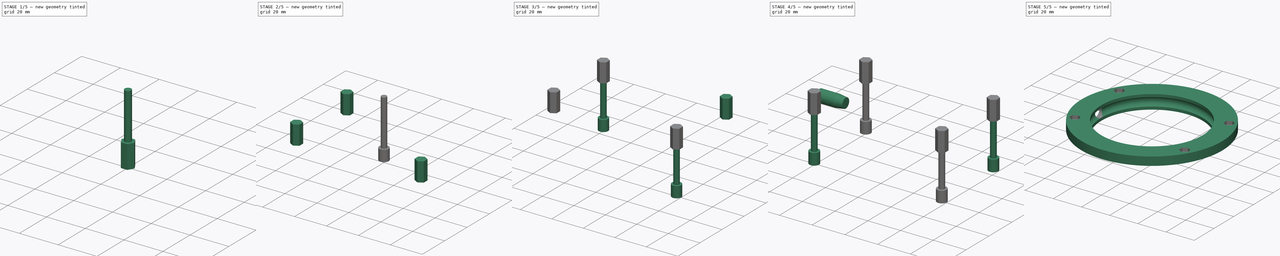
[diagram: build sequence overview — one tinted view per stage of 5, left to right]
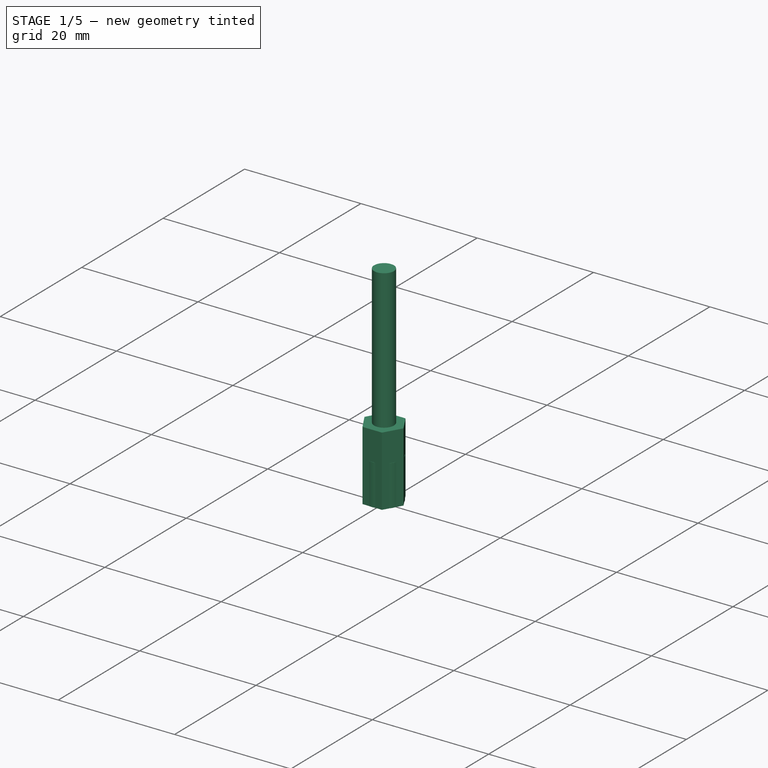
[diagram: stage 1 of 5 — iso view after this stage's code; geometry added in this stage tinted green]
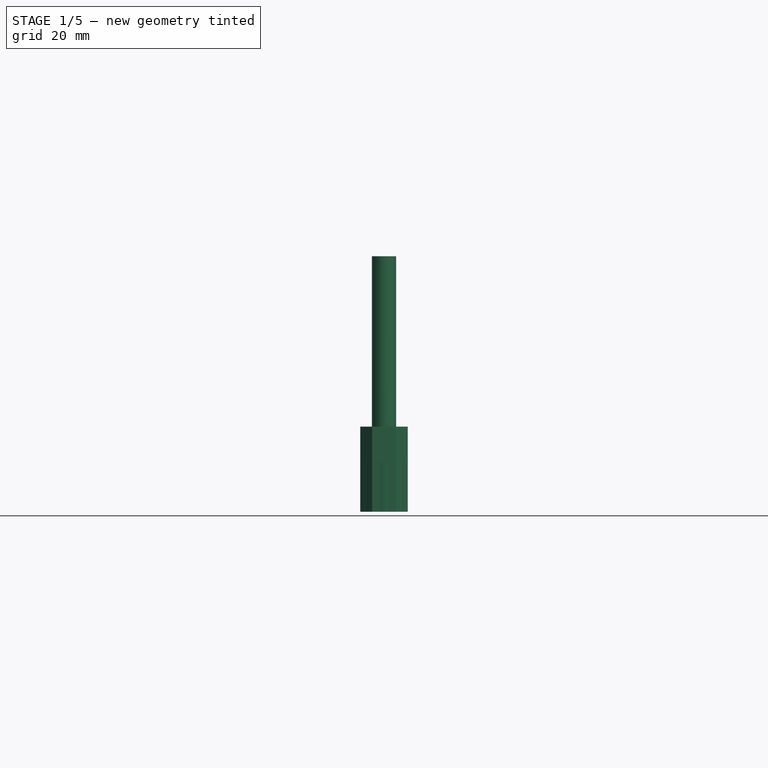
[diagram: stage 1 of 5 — front view after this stage's code; geometry added in this stage tinted green]
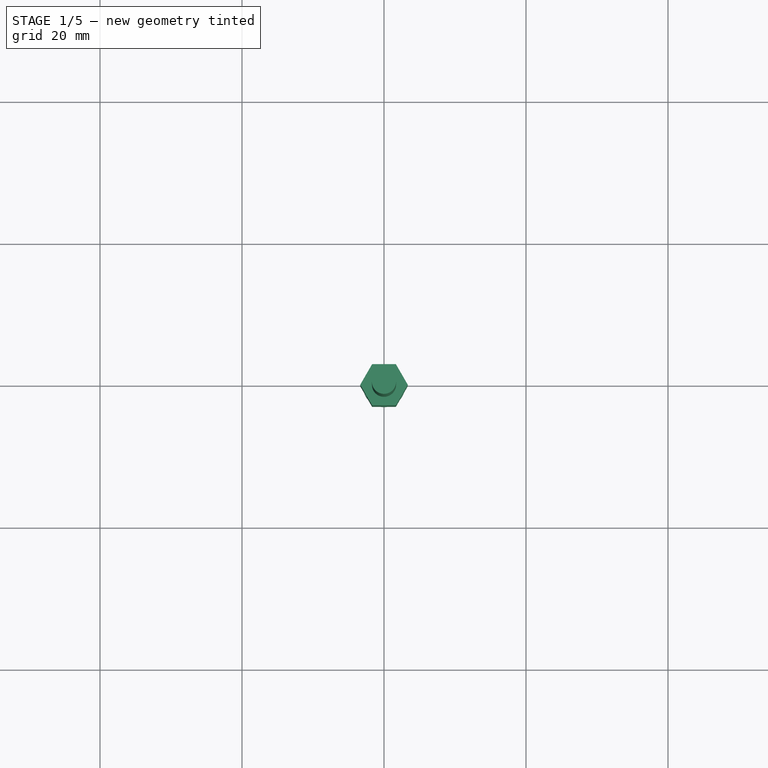
[diagram: stage 1 of 5 — top view after this stage's code; geometry added in this stage tinted green]
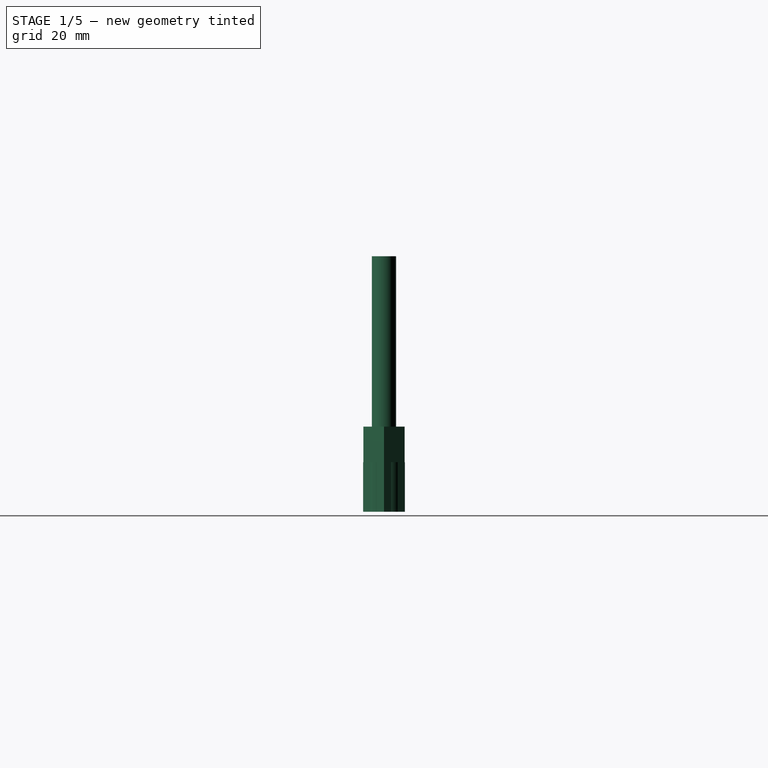
[diagram: stage 1 of 5 — right view after this stage's code; geometry added in this stage tinted green]
FCSTD DOCUMENT  (FreeCAD 0.16R6458 (Git))
Label: Art4BearingRing
License: All rights reserved
LicenseURL: http://en.wikipedia.org/wiki/All_rights_reserved
objects: Part::FeaturePython×8, Part::Cylinder×2, Part::MultiFuse×2, Sketcher::SketchObject×2, PartDesign::Revolution×2, Part::Cut×2, Part::Prism×1, App::DocumentObjectGroup×1
note: 21 computed .brp shape members not serialized (recipe doc carries the construction recipe); baked Part::Feature solids carry a one-line shape summary decoded from their .brp

FEATURE [Part::Cylinder] Cylinder  label="M3BoltHead"
  Angle = 360
  Height = 7
  Radius = 2.95
FEATURE [Part::Cylinder] Cylinder001  label="M3BoltBody"
  Angle = 360
  Height = 30
  Placement = pos=(0,0,6) rot=(0,0,1;0rad)
  Radius = 1.7
FEATURE [Part::Prism] Prism  label="M3Nut"
  Circumradius = 3.35
  Height = 12
  Polygon = 6
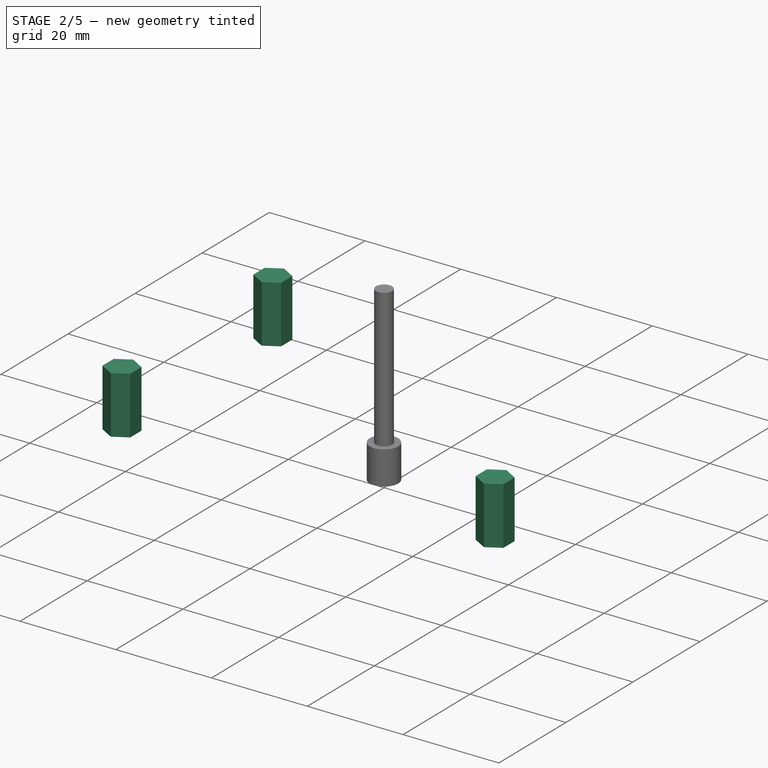
[diagram: stage 2 of 5 — iso view after this stage's code; geometry added in this stage tinted green]
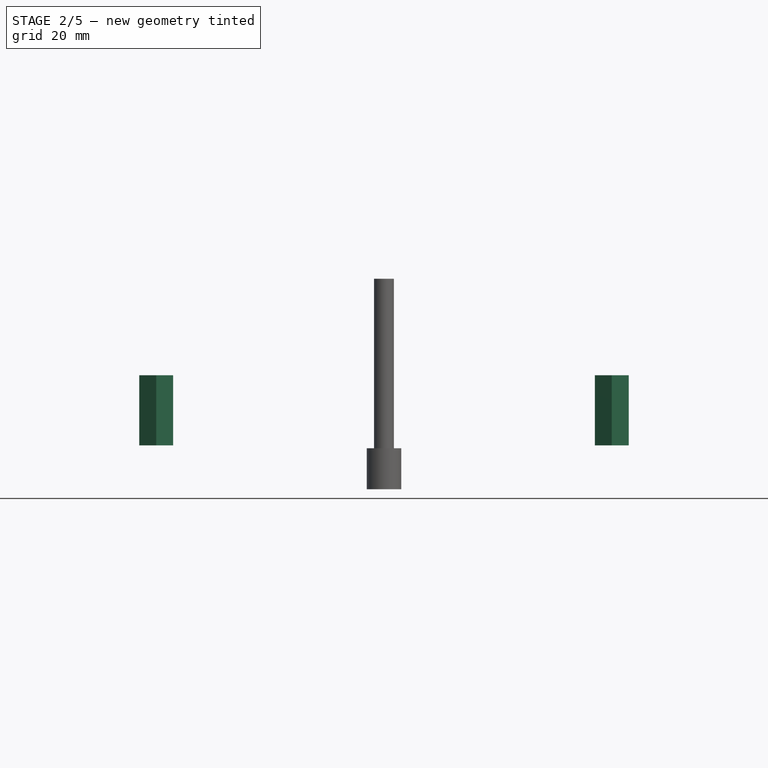
[diagram: stage 2 of 5 — front view after this stage's code; geometry added in this stage tinted green]
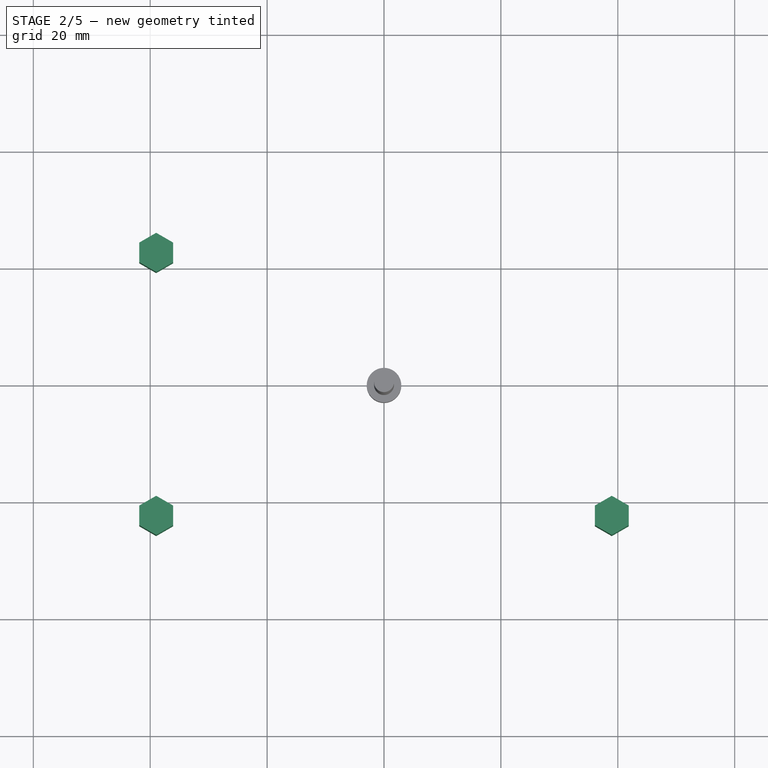
[diagram: stage 2 of 5 — top view after this stage's code; geometry added in this stage tinted green]
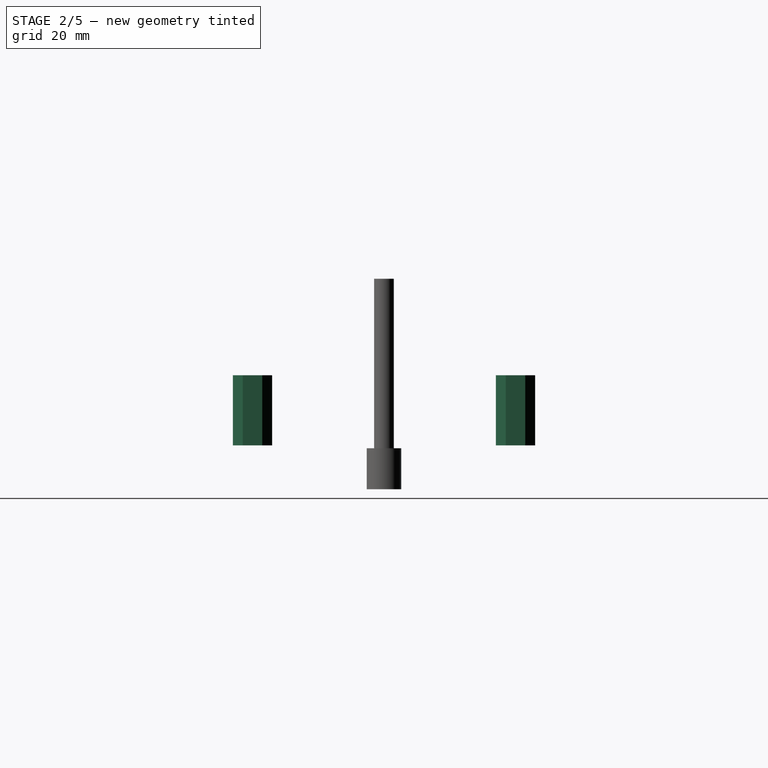
[diagram: stage 2 of 5 — right view after this stage's code; geometry added in this stage tinted green]
FEATURE [Part::MultiFuse] Fusion  label="M3Bolt"
  Shapes = -> [Cylinder001,Cylinder]
FEATURE [Part::FeaturePython] Clone257  label="Clone of M3Nut010"  # Draft clone (typed FeaturePython)
  Objects = -> [Prism]
  Placement = pos=(-38.9711,-22.5,7.5) rot=(0,0,1;4.71239rad)
  Scale = (1,1,1)
FEATURE [Part::FeaturePython] Clone258  label="Clone of M3Nut011"  # Draft clone (typed FeaturePython)
  Objects = -> [Prism]
  Placement = pos=(38.9711,-22.5,7.5) rot=(0,0,1;1.5708rad)
  Scale = (1,1,1)
FEATURE [Part::FeaturePython] Clone259  label="Clone of M3Nut012"  # Draft clone (typed FeaturePython)
  Objects = -> [Prism]
  Placement = pos=(-38.9711,22.5,7.5) rot=(0,0,1;4.71239rad)
  Scale = (1,1,1)
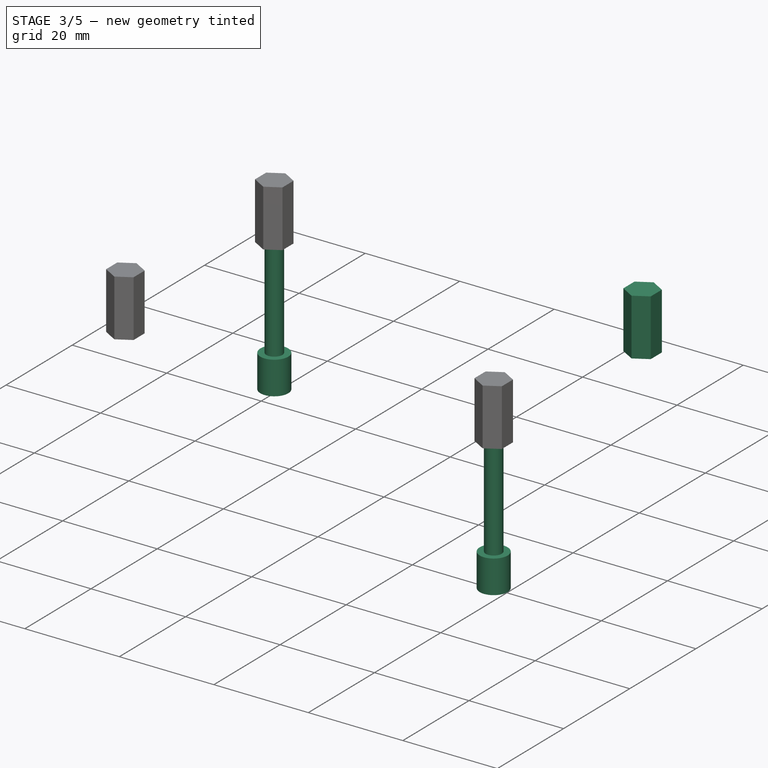
[diagram: stage 3 of 5 — iso view after this stage's code; geometry added in this stage tinted green]
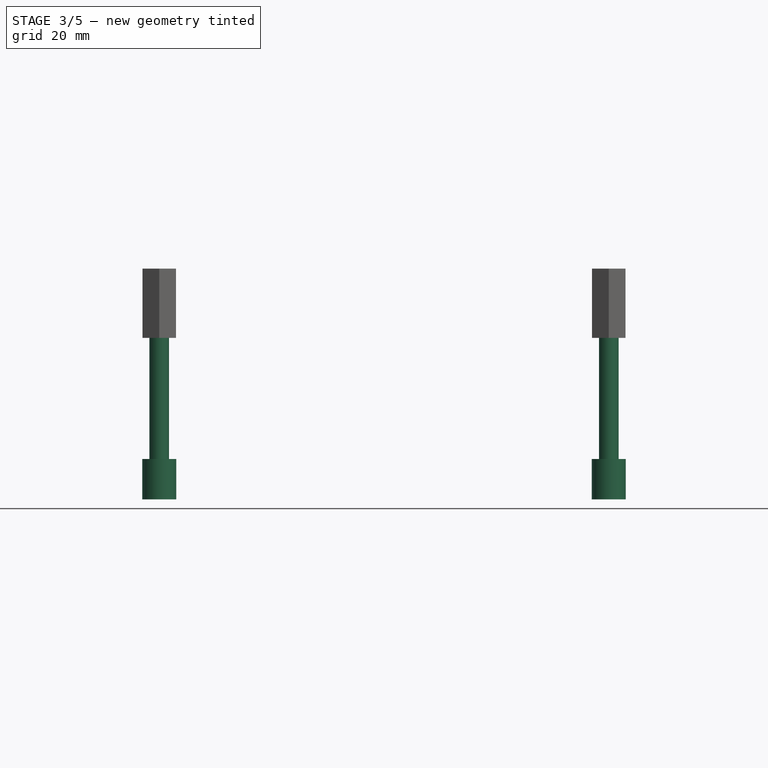
[diagram: stage 3 of 5 — front view after this stage's code; geometry added in this stage tinted green]
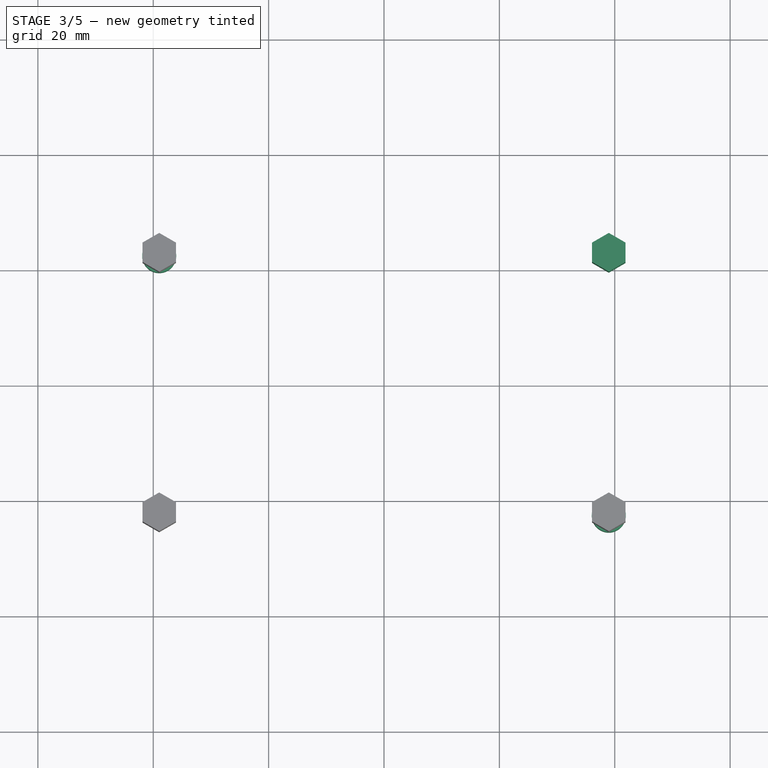
[diagram: stage 3 of 5 — top view after this stage's code; geometry added in this stage tinted green]
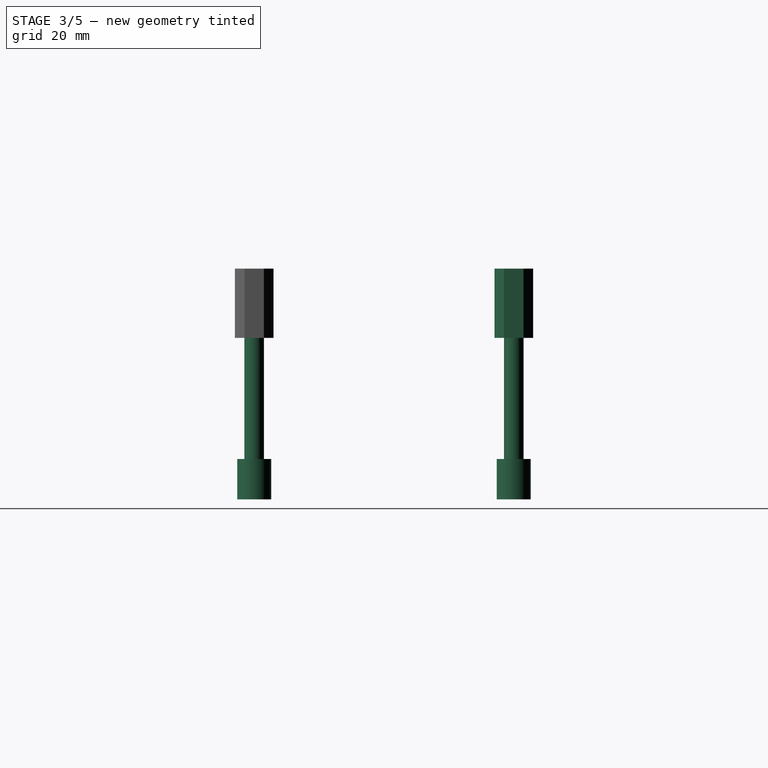
[diagram: stage 3 of 5 — right view after this stage's code; geometry added in this stage tinted green]
FEATURE [Part::FeaturePython] Clone254  label="Clone of M3Bolt087"  # Draft clone (typed FeaturePython)
  Objects = -> [Fusion]
  Placement = pos=(38.9711,-22.5,-20.5) rot=(0,0,1;1.5708rad)
  Scale = (1,1,1)
FEATURE [Part::FeaturePython] Clone255  label="Clone of M3Bolt088"  # Draft clone (typed FeaturePython)
  Objects = -> [Fusion]
  Placement = pos=(-38.9711,22.5,-20.5) rot=(0,0,1;4.71239rad)
  Scale = (1,1,1)
FEATURE [Part::FeaturePython] Clone256  label="Clone of M3Nut009"  # Draft clone (typed FeaturePython)
  Objects = -> [Prism]
  Placement = pos=(38.9711,22.5,7.5) rot=(0,0,1;1.5708rad)
  Scale = (1,1,1)
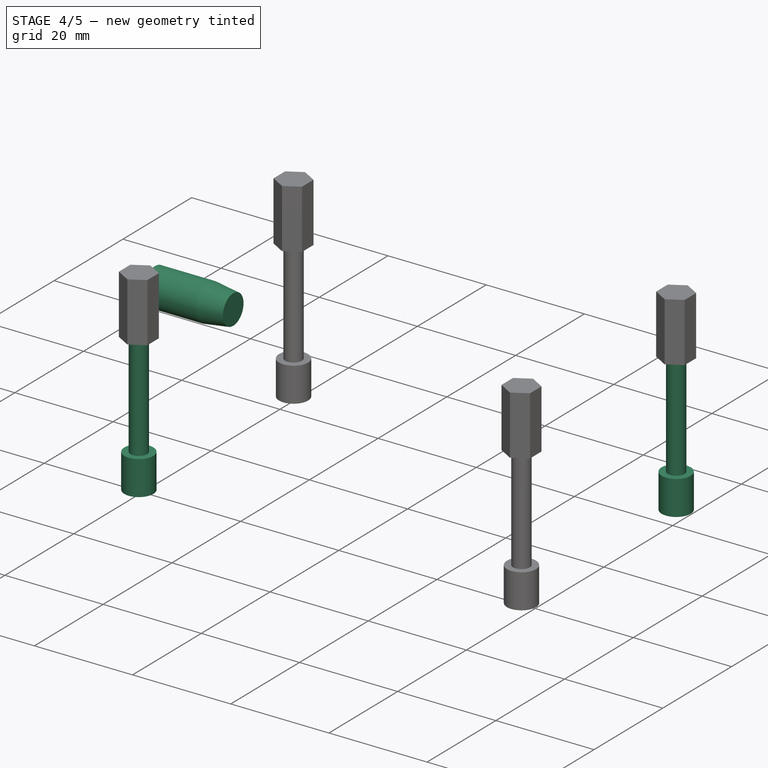
[diagram: stage 4 of 5 — iso view after this stage's code; geometry added in this stage tinted green]
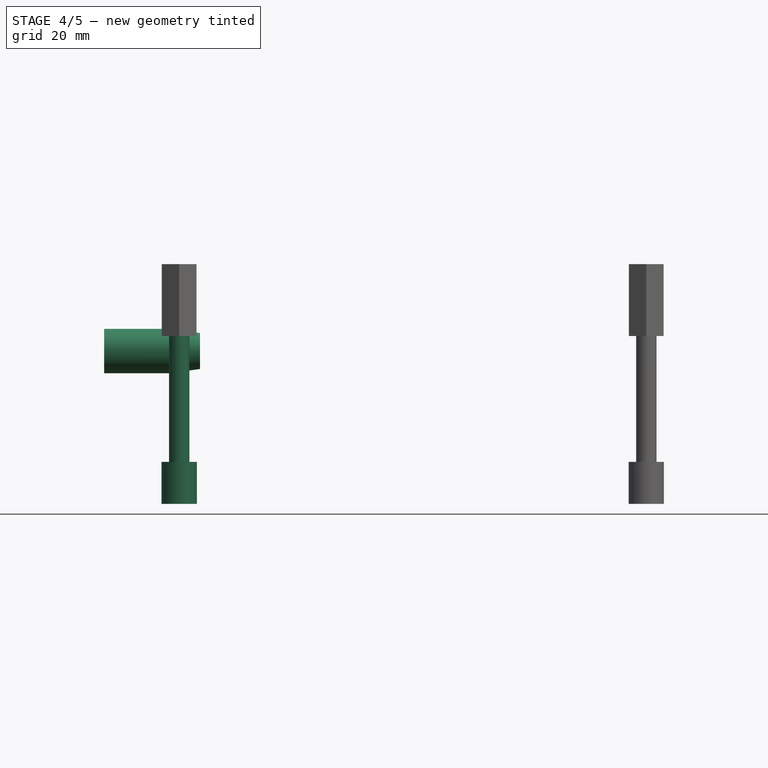
[diagram: stage 4 of 5 — front view after this stage's code; geometry added in this stage tinted green]
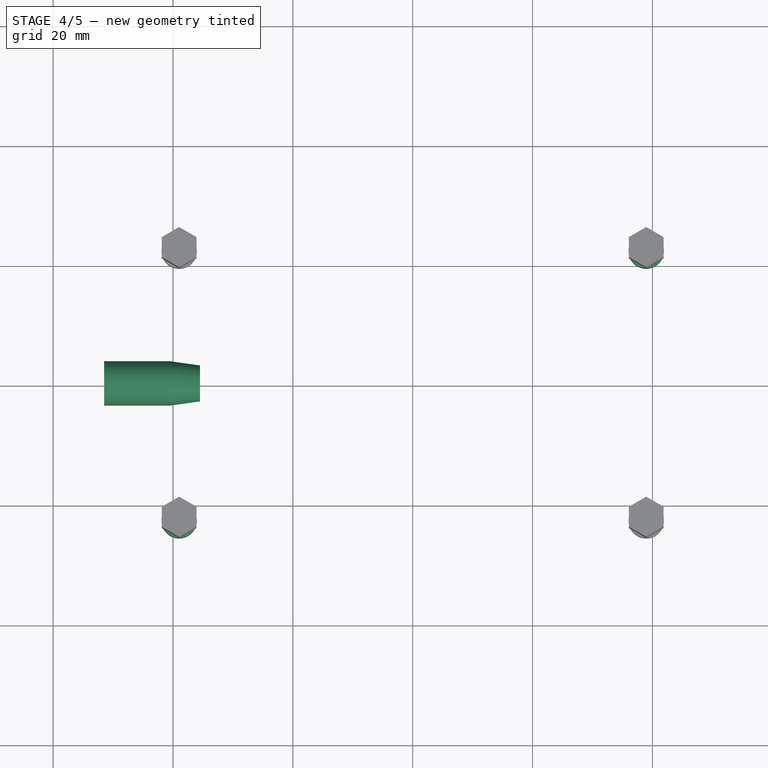
[diagram: stage 4 of 5 — top view after this stage's code; geometry added in this stage tinted green]
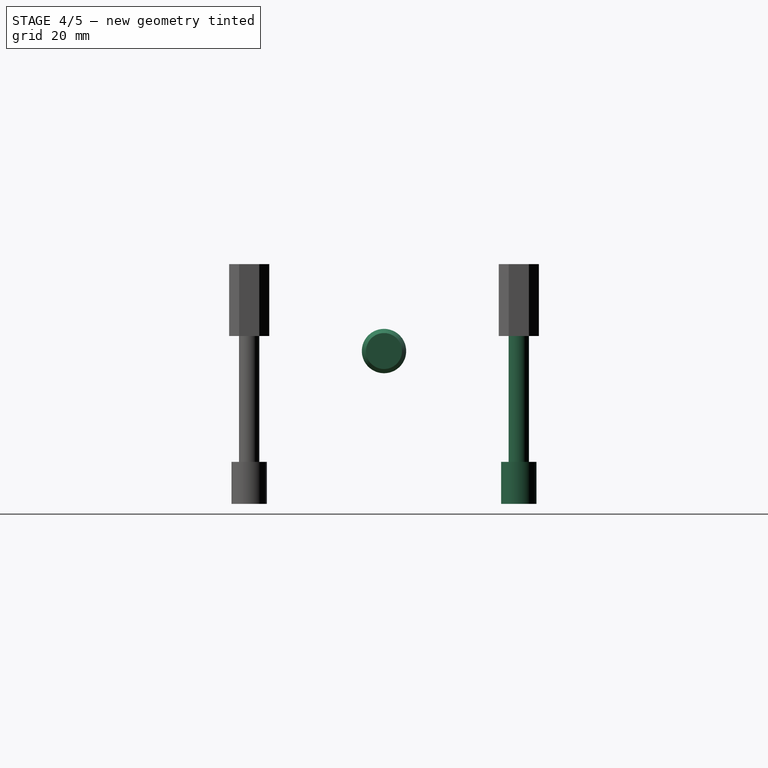
[diagram: stage 4 of 5 — right view after this stage's code; geometry added in this stage tinted green]
FEATURE [Sketcher::SketchObject] Sketch048
  Placement = pos=(-51.5,0,5) rot=(1,0,0;1.5708rad)
  sketch-geometry (5):
    g0: LineSegment StartX=0 StartY=0 StartZ=0 EndX=0 EndY=3.7 EndZ=0
    g1: LineSegment StartX=0 StartY=3.7 StartZ=0 EndX=11 EndY=3.7 EndZ=0
    g2: LineSegment StartX=11 StartY=3.7 StartZ=0 EndX=16 EndY=3 EndZ=0
    g3: LineSegment StartX=16 StartY=3 StartZ=0 EndX=16 EndY=0 EndZ=0
    g4: LineSegment StartX=16 StartY=0 StartZ=0 EndX=0 EndY=0 EndZ=0
  constraints (14):
    c: Coincident(g-1,g0)
    c: PointOnObject(g0,g-2)
    c: Coincident(g0,g1)
    c: Horizontal(g1)
    c: Coincident(g1,g2)
    c: Coincident(g2,g3)
    c: PointOnObject(g3,g-1)
    c: Vertical(g3)
    c: Coincident(g3,g4)
    c: Coincident(g4,g0)
    c: DistanceY(g0) = 3.7
    c: DistanceX(g1) = 11
    c: DistanceY(g3) = -3
    c: DistanceX(g2) = 5
FEATURE [PartDesign::Revolution] Revolution010
  Angle = 360
  Axis = (1,0,0)
  Base = (-51.5,0,5)
  Placement = pos=(-51.5,0,5) rot=(1,0,0;1.5708rad)
  ReferenceAxis = -> Sketch048 [H_Axis]
  Sketch = -> Sketch048
FEATURE [Part::FeaturePython] Clone252  label="Clone of M3Bolt085"  # Draft clone (typed FeaturePython)
  Objects = -> [Fusion]
  Placement = pos=(38.9711,22.5,-20.5) rot=(0,0,1;1.5708rad)
  Scale = (1,1,1)
FEATURE [Part::FeaturePython] Clone253  label="Clone of M3Bolt086"  # Draft clone (typed FeaturePython)
  Objects = -> [Fusion]
  Placement = pos=(-38.9711,-22.5,-20.5) rot=(0,0,1;4.71239rad)
  Scale = (1,1,1)
FEATURE [Part::MultiFuse] Fusion090
  Shapes = -> [Clone252,Clone255,Clone258,Clone259,Clone256,Clone254,Clone257,Clone253]
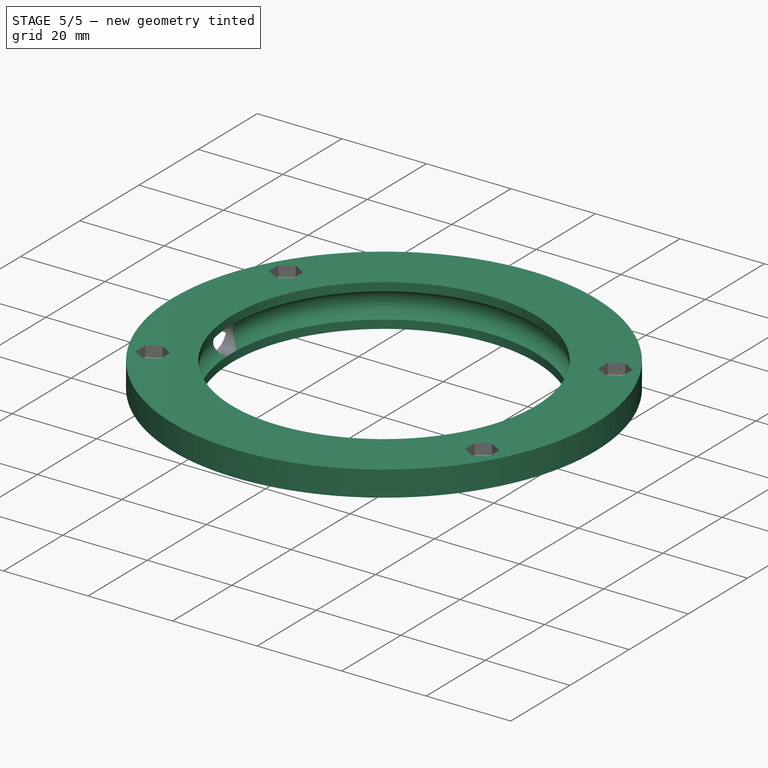
[diagram: stage 5 of 5 — iso view after this stage's code; geometry added in this stage tinted green]
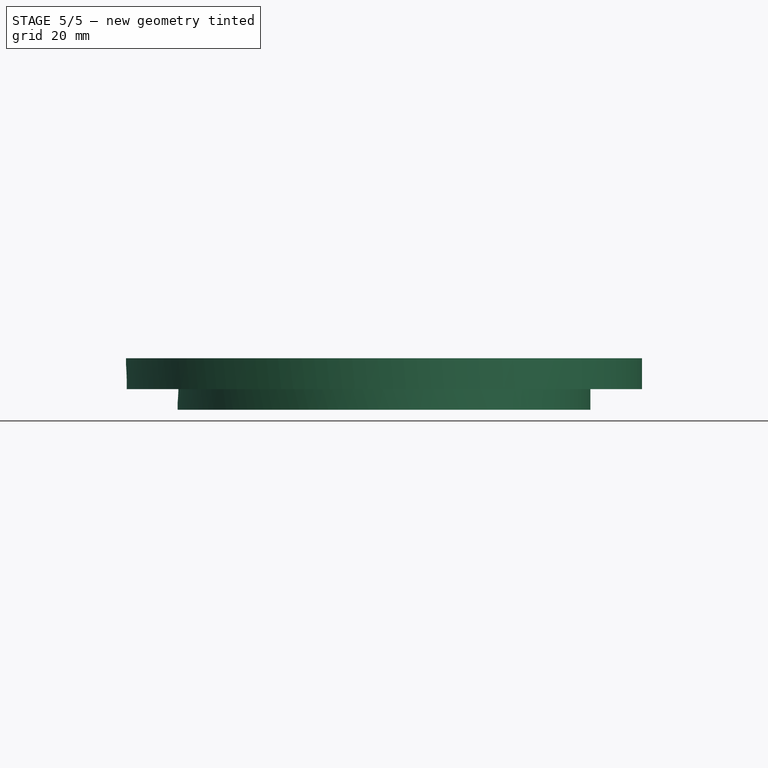
[diagram: stage 5 of 5 — front view after this stage's code; geometry added in this stage tinted green]
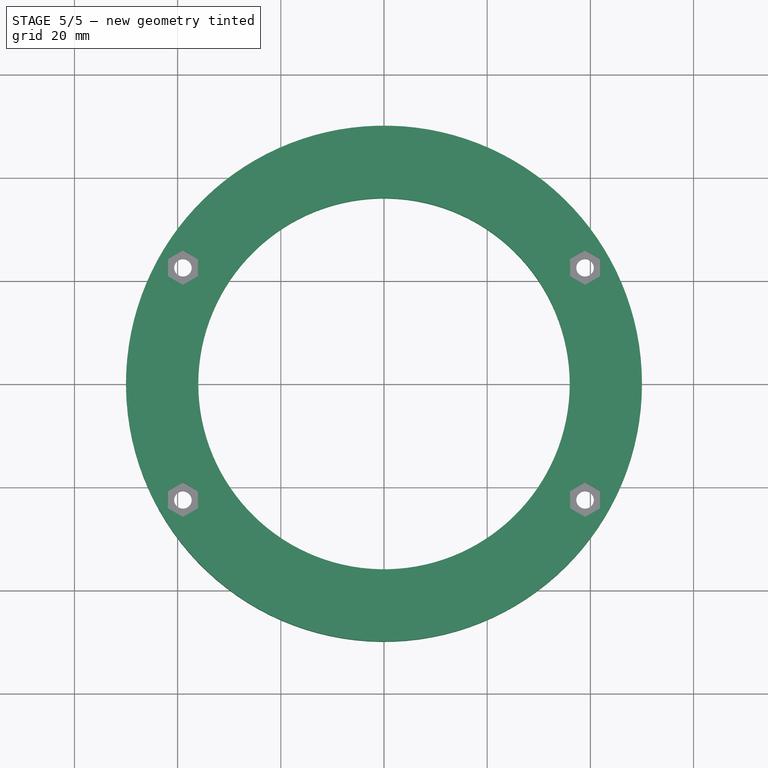
[diagram: stage 5 of 5 — top view after this stage's code; geometry added in this stage tinted green]
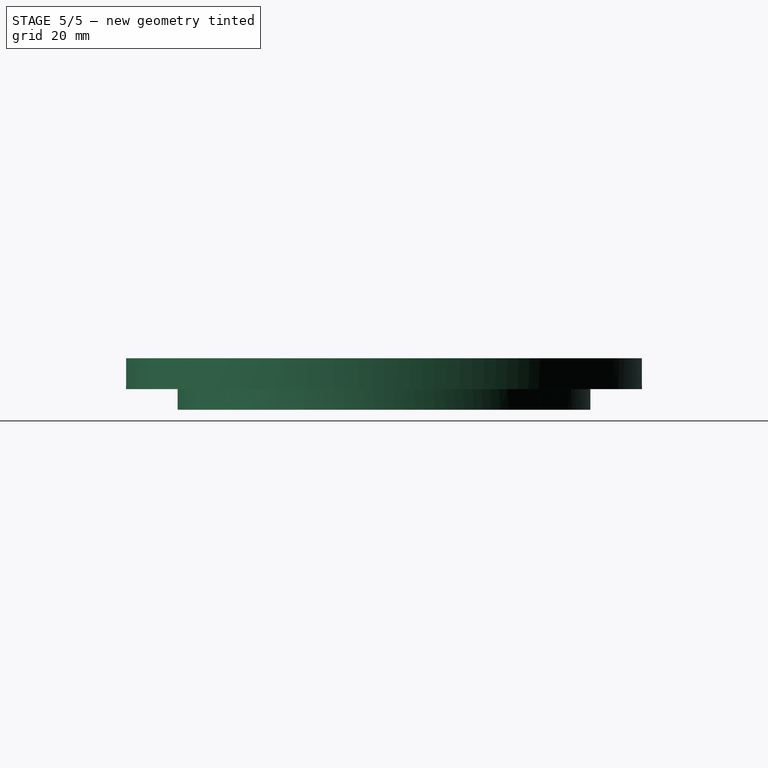
[diagram: stage 5 of 5 — right view after this stage's code; geometry added in this stage tinted green]
FEATURE [Sketcher::SketchObject] Sketch047
  Placement = pos=(0,0,0) rot=(1,0,0;1.5708rad)
  sketch-geometry (9):
    g0: LineSegment StartX=36 StartY=1.96026 StartZ=0 EndX=36 EndY=0 EndZ=0
    g1: LineSegment StartX=36 StartY=0 StartZ=0 EndX=40 EndY=0 EndZ=0
    g2: LineSegment StartX=40 StartY=0 StartZ=0 EndX=40 EndY=4 EndZ=0
    g3: LineSegment StartX=40 StartY=4 StartZ=0 EndX=50 EndY=4 EndZ=0
    g4: LineSegment StartX=50 StartY=4 StartZ=0 EndX=50 EndY=10 EndZ=0
    g5: LineSegment StartX=50 StartY=10 StartZ=0 EndX=36 EndY=10 EndZ=0
    g6: LineSegment StartX=36 StartY=10 StartZ=0 EndX=36 EndY=8.03974 EndZ=0
    g7: ArcOfCircle CenterX=35 CenterY=5 CenterZ=0 NormalX=0 NormalY=0 NormalZ=1 Radius=3.2 StartAngle=5.03021 EndAngle=7.53616
    g8: LineSegment [constr] StartX=36 StartY=8.03974 StartZ=0 EndX=36 EndY=1.96026 EndZ=0
  constraints (27):
    c: PointOnObject(g0,g-1)
    c: Vertical(g0)
    c: Coincident(g0,g1)
    c: PointOnObject(g1,g-1)
    c: Coincident(g1,g2)
    c: Vertical(g2)
    c: Coincident(g2,g3)
    c: Horizontal(g3)
    c: Coincident(g3,g4)
    c: Vertical(g4)
    c: Coincident(g4,g5)
    c: Horizontal(g5)
    c: Coincident(g5,g6)
    c: Vertical(g6)
    c: Coincident(g7,g6)
    c: Coincident(g7,g0)
    c: DistanceX(g-1,g5) = 36
    c: DistanceY(g7,g5) = 5
    c: Radius(g7) = 3.2
    c: DistanceY(g4) = 6
    c: DistanceY(g2) = 4
    c: DistanceX(g-1,g2) = 40
    c: DistanceX(g-1,g3) = 50
    c: Coincident(g8,g6)
    c: Coincident(g8,g0)
    c: Vertical(g8)
    c: DistanceX(g-1,g7) = 35
FEATURE [PartDesign::Revolution] Revolution009
  Angle = 360
  Axis = (0,0,1)
  Base = (0,0,0)
  Placement = pos=(0,0,0) rot=(1,0,0;1.5708rad)
  ReferenceAxis = -> Sketch047 [V_Axis]
  Reversed = true
  Sketch = -> Sketch047
FEATURE [Part::Cut] Cut077
  Base = -> Revolution009
  Tool = -> Revolution010
FEATURE [Part::Cut] Cut078  label="Art4BearingRingMaster"
  Base = -> Cut077
  Tool = -> Fusion090
FEATURE [App::DocumentObjectGroup] Group  label="Master"
  Group = -> [Fusion,Prism]
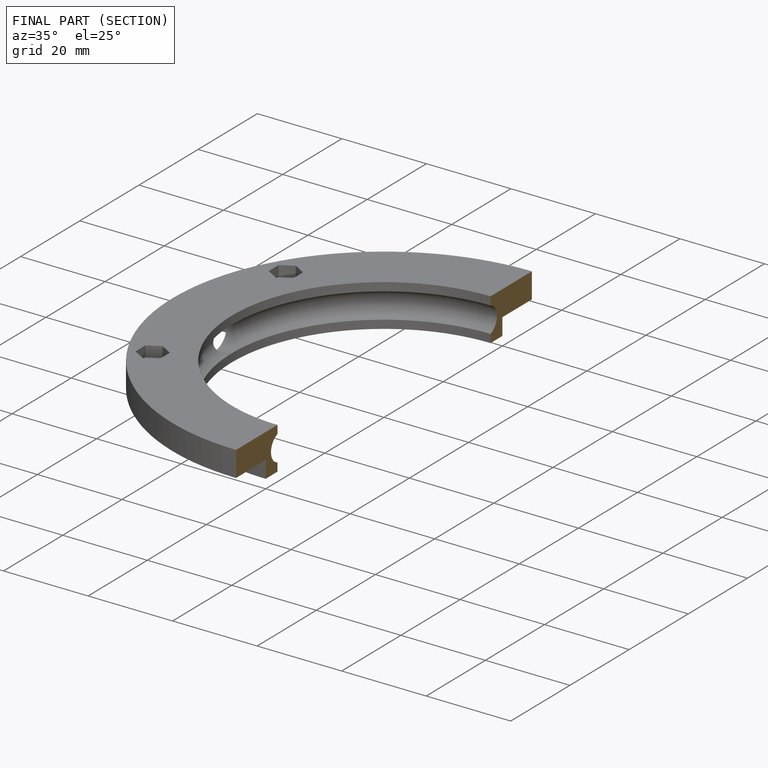
[diagram: finished part — half-section view (interior)]
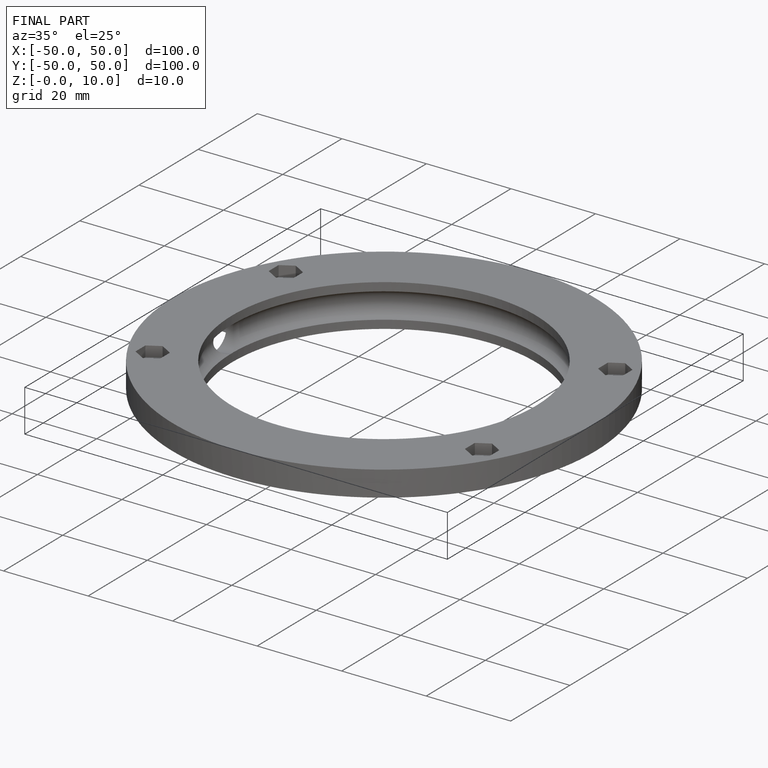
[diagram: finished part — iso view with bounding-box wireframe]
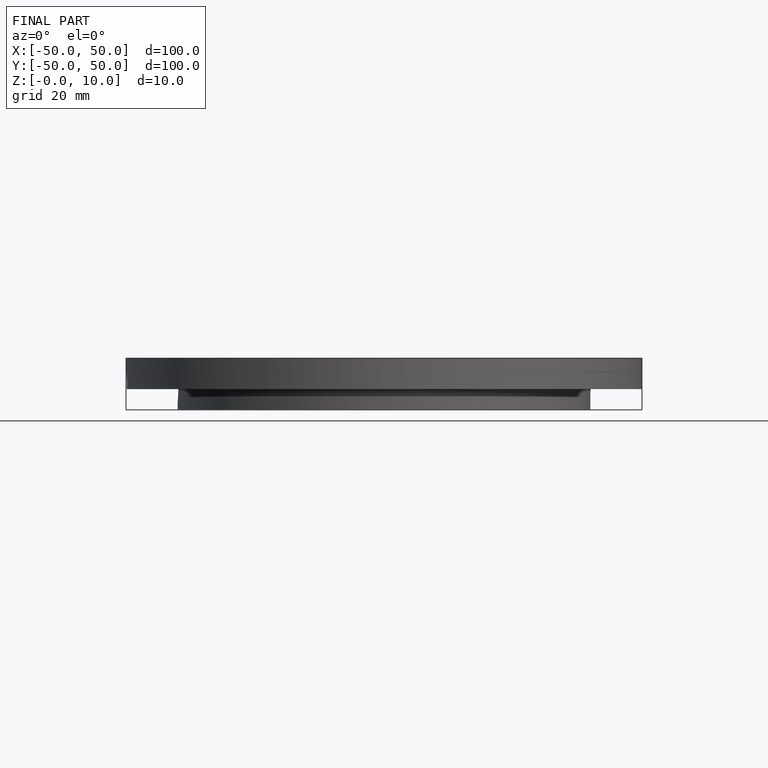
[diagram: finished part — front view with bounding-box wireframe]
